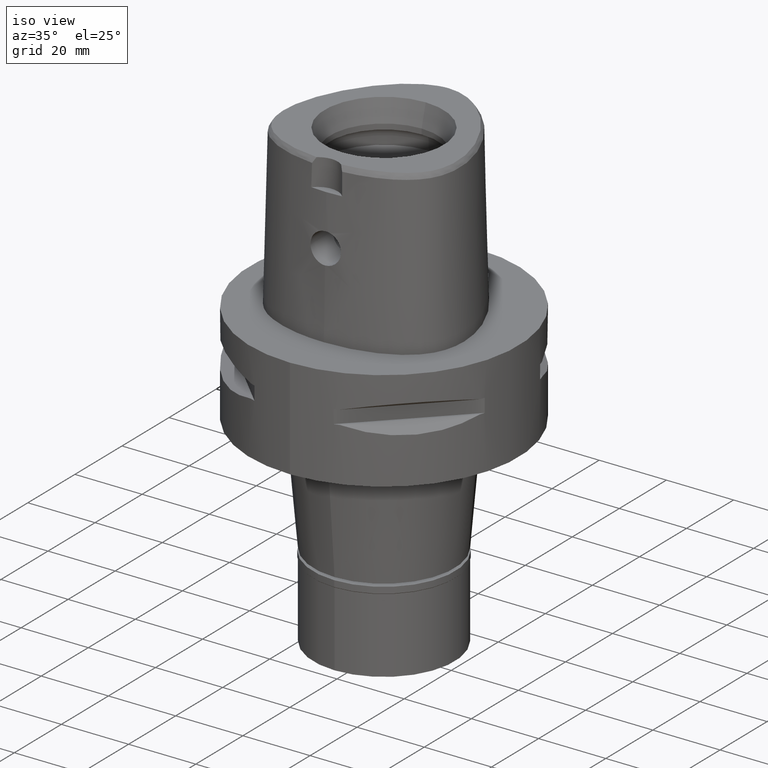
[diagram: clean part render]
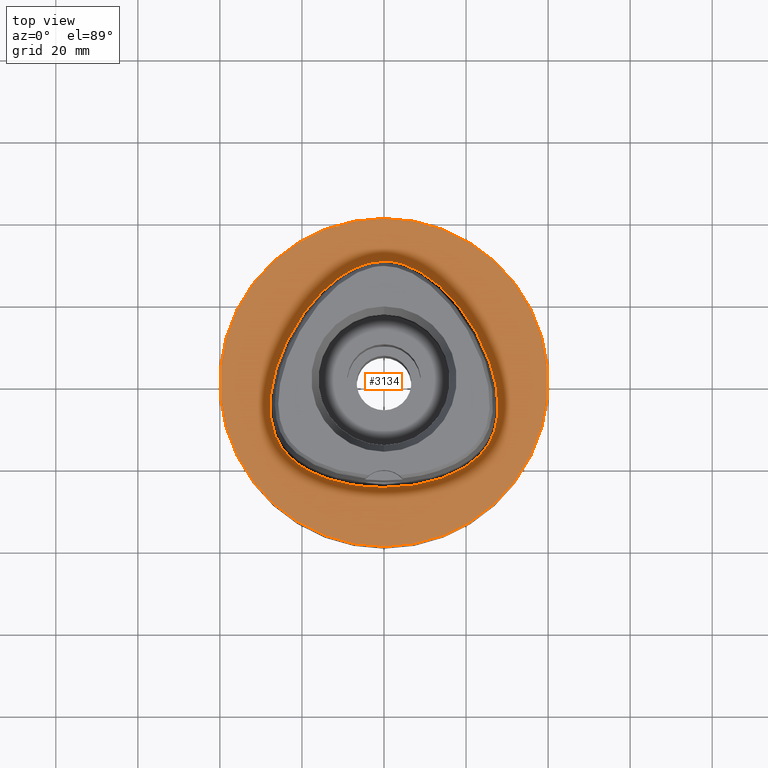
[diagram: tour spotlight — one face highlighted and labeled with its STEP entity id]
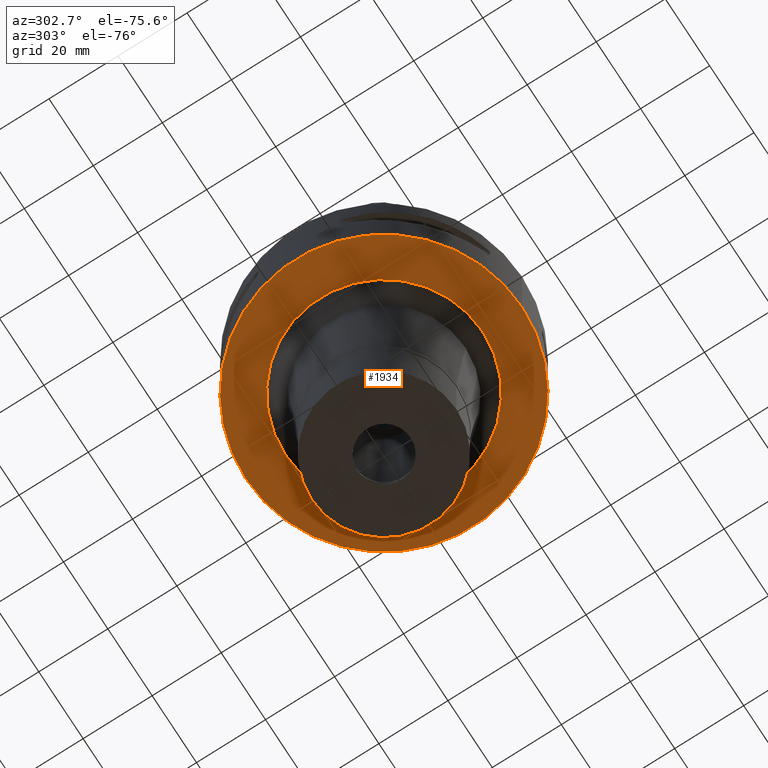
[diagram: tour spotlight — one face highlighted and labeled with its STEP entity id]
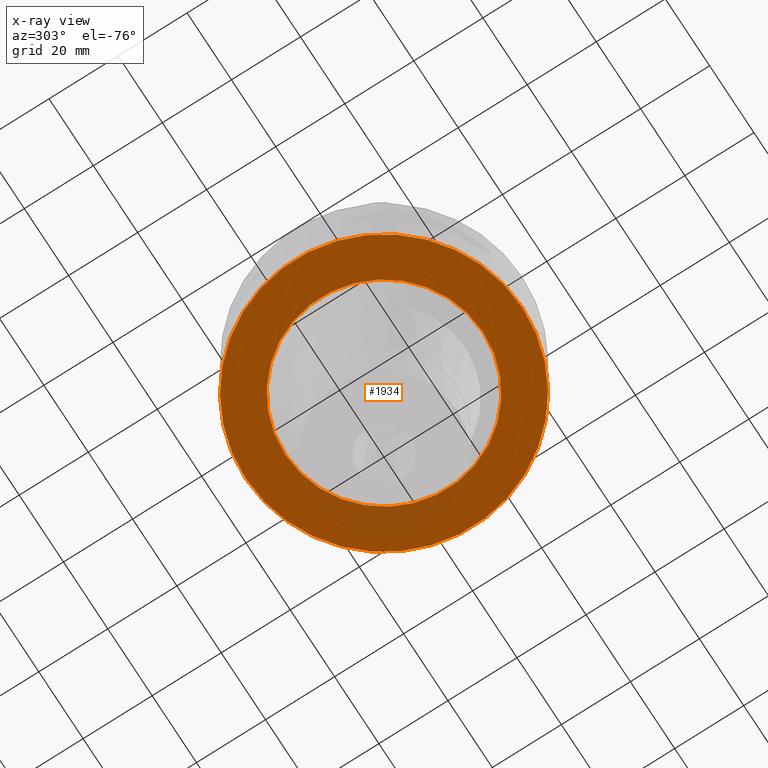
[diagram: x-ray of the same camera — body ghosted, this tour face saturated]
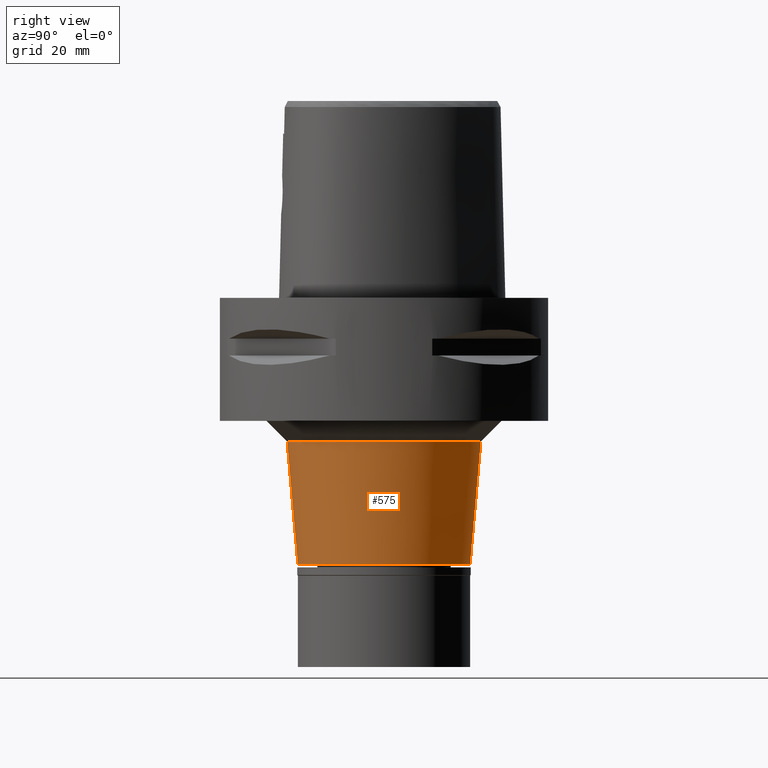
[diagram: tour spotlight — one face highlighted and labeled with its STEP entity id]
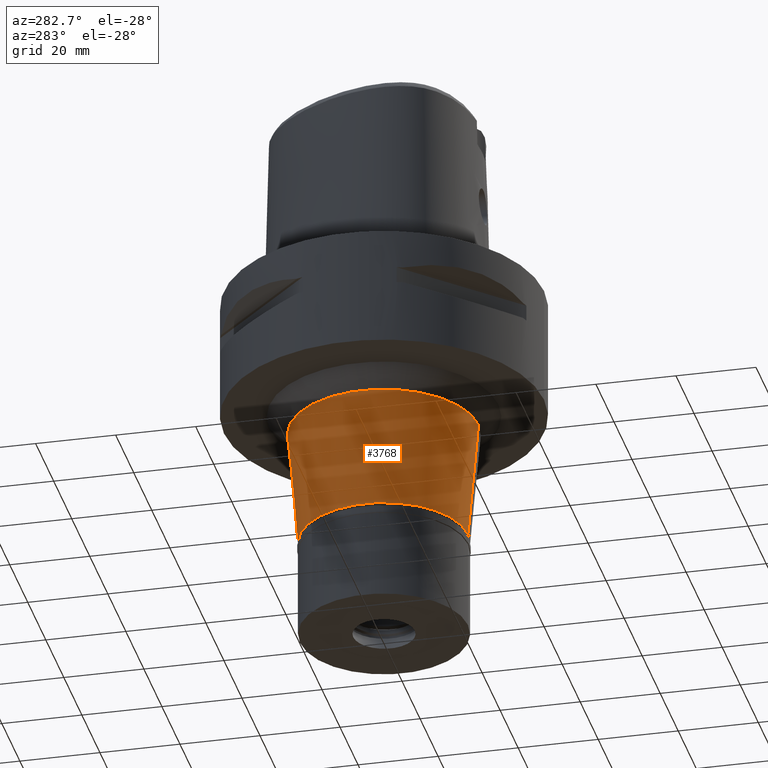
[diagram: tour spotlight — one face highlighted and labeled with its STEP entity id]
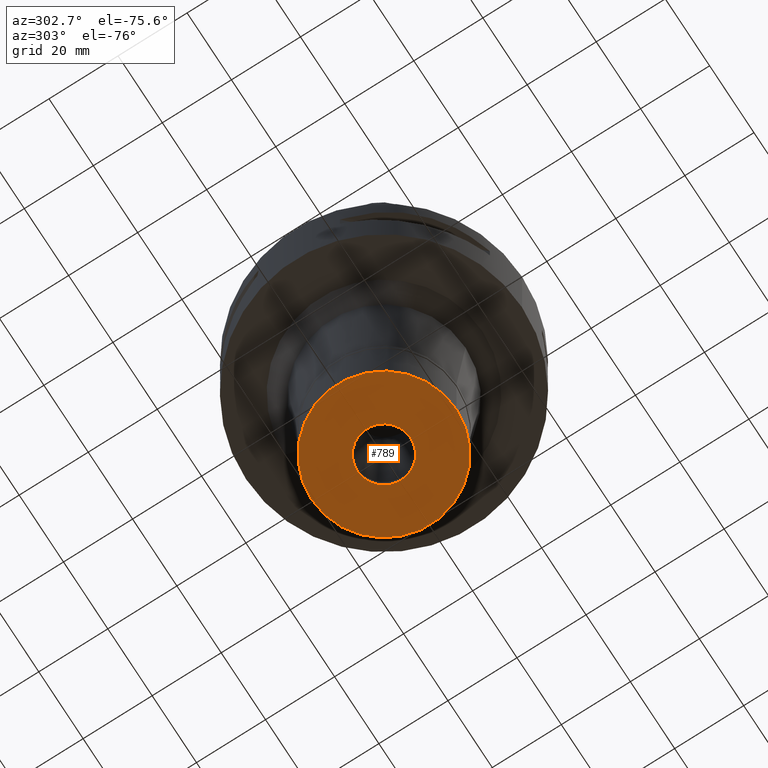
[diagram: tour spotlight — one face highlighted and labeled with its STEP entity id]
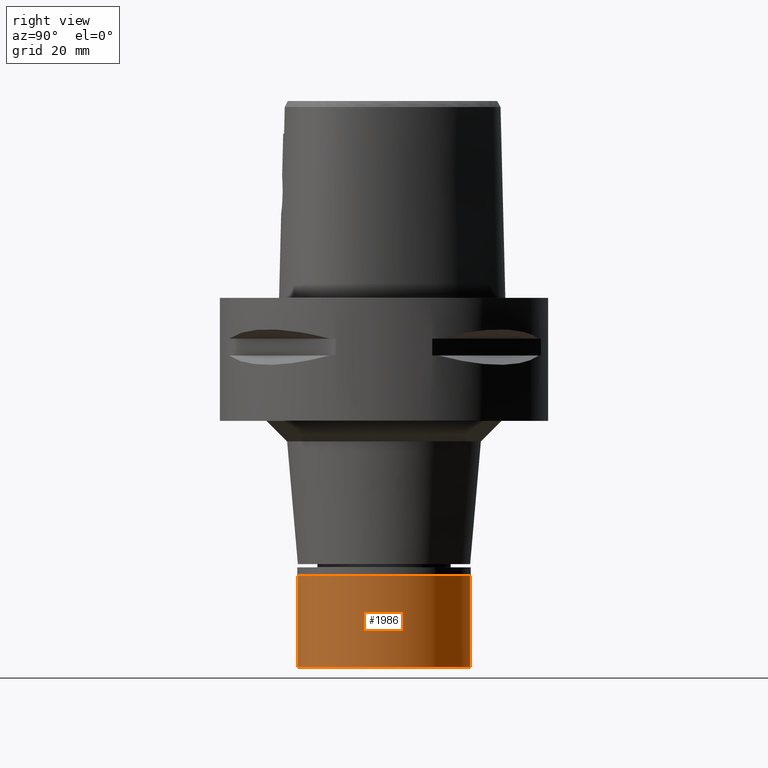
[diagram: tour spotlight — one face highlighted and labeled with its STEP entity id]
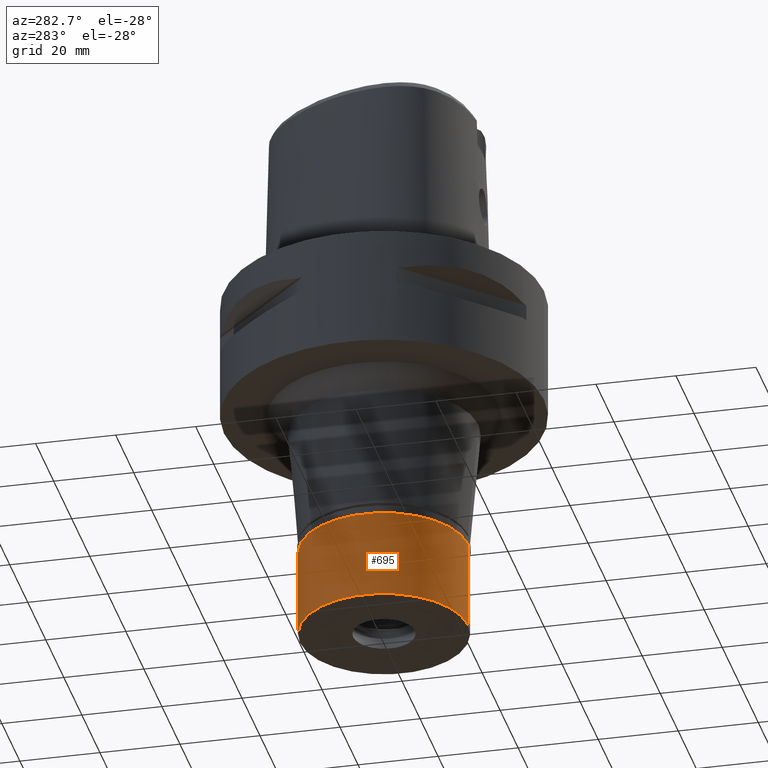
[diagram: tour spotlight — one face highlighted and labeled with its STEP entity id]
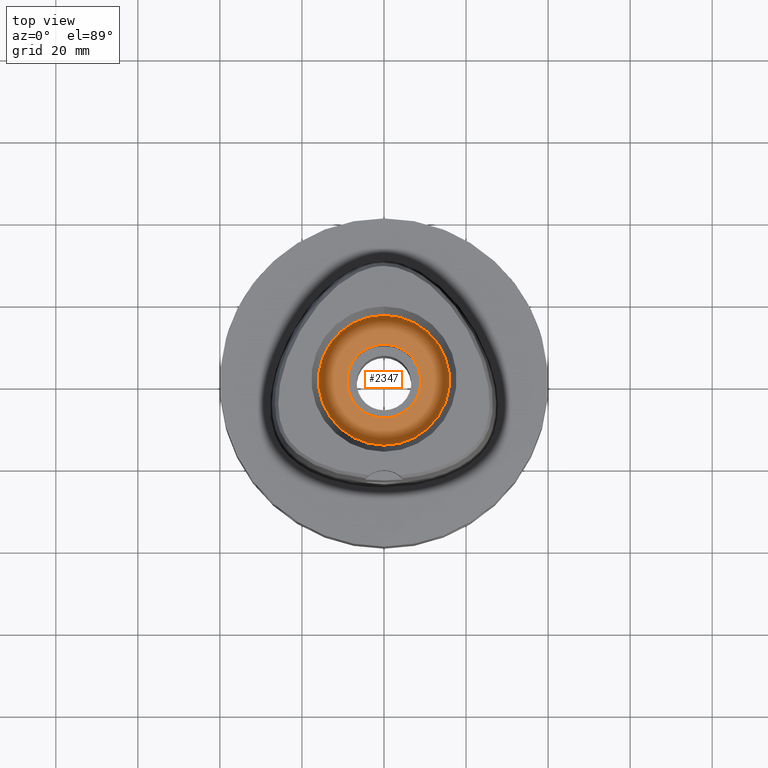
[diagram: tour spotlight — one face highlighted and labeled with its STEP entity id]
A machine part: a face-by-face anatomy tour. The part has 97 B-rep faces; the first image is the clean iso view, then the 8 largest visible faces are spotlighted one at a time (largest first), each with its STEP entity span.

Face 1 — top view, entity #3134. In plain terms, the highlighted planar face has unit normal (0, 0, -1).
Definition (entity closure, byte-faithful):
#14 = CARTESIAN_POINT ( 'NONE',  ( -26.34912733307332644, -13.39455076409285894, 1.705449548944359961E-06 ) ) ;
#89 = CARTESIAN_POINT ( 'NONE',  ( 27.53737508976282911, -1.765625004403643228, 1.164179840311592440E-06 ) ) ;
#183 = ORIENTED_EDGE ( 'NONE', *, *, #2771, .F. ) ;
#204 = DIRECTION ( 'NONE',  ( 0.0000000000000000000, 1.000000000000000000, 0.0000000000000000000 ) ) ;
#330 = CARTESIAN_POINT ( 'NONE',  ( -27.85475985469420479, -5.337968751072506457, 1.705449548944359961E-06 ) ) ;
#382 = CARTESIAN_POINT ( 'NONE',  ( 0.0000000000000000000, 1.224646799146999965E-14, 0.0000000000000000000 ) ) ;
#415 = CARTESIAN_POINT ( 'NONE',  ( 0.0000000000000000000, 1.275163479612000028E-14, 0.0000000000000000000 ) ) ;
#451 = VERTEX_POINT ( 'NONE', #1388 ) ;
#513 = CARTESIAN_POINT ( 'NONE',  ( 9.304563391385238802, 26.79191403758505885, 1.164179840311592440E-06 ) ) ;
#684 = ORIENTED_EDGE ( 'NONE', *, *, #3972, .F. ) ;
#762 = FACE_OUTER_BOUND ( 'NONE', #2837, .T. ) ;
#786 = CARTESIAN_POINT ( 'NONE',  ( -6.691850457964651611, -25.24546870763568407, 1.705449548944359961E-06 ) ) ;
#866 = CARTESIAN_POINT ( 'NONE',  ( 26.34912734549795488, -13.39455076954364543, 1.164179840311592440E-06 ) ) ;
#987 = AXIS2_PLACEMENT_3D ( 'NONE', #415, #4293, #3538 ) ;
#1020 = AXIS2_PLACEMENT_3D ( 'NONE', #2168, #3720, #204 ) ;
#1023 = CARTESIAN_POINT ( 'NONE',  ( 4.148697105489999649E-11, 29.57499999998999840, 1.066184177981999759E-13 ) ) ;
#1052 = EDGE_CURVE ( 'NONE', #1465, #3949, #1107, .T. ) ;
#1073 = CARTESIAN_POINT ( 'NONE',  ( -24.77458490052401885, -16.12173825595970911, 1.705449548944359961E-06 ) ) ;
#1107 = CIRCLE ( 'NONE', #1020, 40.00000000000000000 ) ;
#1119 = B_SPLINE_CURVE_WITH_KNOTS ( 'NONE', 3,
 ( #1951, #2663, #4308, #2362, #2688, #2286, #3044, #4196, #3842, #2741, #4610, #330, #3870, #1160, #14, #4250, #1073, #4226, #1897, #5022, #3450, #3076, #786, #3103, #5077 ),
 .UNSPECIFIED., .F., .F.,
 ( 4, 1, 1, 1, 1, 1, 1, 1, 1, 1, 1, 1, 1, 1, 1, 1, 1, 1, 1, 1, 1, 1, 4 ),
 ( 0.0000000000000000000, 0.04166666666717999679, 0.08333333333381000296, 0.1250000000004000134, 0.1666666666671000052, 0.2500000000002999823, 0.3333333333335999904, 0.4166666666668999985, 0.4583333333335000148, 0.5000000000001000311, 0.5416666666667999674, 0.5833333333333999837, 0.6250000000000000000, 0.6458333333333000637, 0.6666666666667000474, 0.6875000000000000000, 0.7083333333333000637, 0.7499999999999000799, 0.7916666666666000163, 0.8333333333332000326, 0.8749999999998000488, 0.9166666666664999852, 1.000000000000000000 ),
 .UNSPECIFIED. ) ;
#1160 = CARTESIAN_POINT ( 'NONE',  ( -27.10051713254556205, -11.41106444140730325, 1.705449548944359961E-06 ) ) ;
#1243 = CARTESIAN_POINT ( 'NONE',  ( 0.0000000000000000000, -40.00000000000000000, 0.0000000000000000000 ) ) ;
#1288 = CARTESIAN_POINT ( 'NONE',  ( 22.33885463237151114, 12.89734373538379764, 1.164179840311592440E-06 ) ) ;
#1388 = CARTESIAN_POINT ( 'NONE',  ( 4.148697105489999649E-11, 29.57499999998999840, 1.066184177981999759E-13 ) ) ;
#1395 = AXIS2_PLACEMENT_3D ( 'NONE', #382, #4581, #2633 ) ;
#1465 = VERTEX_POINT ( 'NONE', #5086 ) ;
#1509 = ORIENTED_EDGE ( 'NONE', *, *, #1052, .F. ) ;
#1524 = EDGE_LOOP ( 'NONE', ( #4900, #183 ) ) ;
#1567 = CIRCLE ( 'NONE', #987, 40.00000000000000000 ) ;
#1674 = CARTESIAN_POINT ( 'NONE',  ( 26.77222811453097862, 1.900468742518985676, 1.164179840311592440E-06 ) ) ;
#1700 = CARTESIAN_POINT ( 'NONE',  ( 18.55019647686541973, -21.45394528686249558, 1.164179840311592440E-06 ) ) ;
#1897 = CARTESIAN_POINT ( 'NONE',  ( -21.42129056772870044, -19.59889645026296989, 1.705449548944359961E-06 ) ) ;
#1951 = CARTESIAN_POINT ( 'NONE',  ( 4.148697105489999649E-11, 29.57499999998999840, 1.066184177981999759E-13 ) ) ;
#2074 = CARTESIAN_POINT ( 'NONE',  ( 6.262496933472998073, 28.35083005116850785, 1.164179840311592440E-06 ) ) ;
#2168 = CARTESIAN_POINT ( 'NONE',  ( 0.0000000000000000000, 1.275163479612000028E-14, 0.0000000000000000000 ) ) ;
#2286 = CARTESIAN_POINT ( 'NONE',  ( -13.21796077729071506, 24.04386715519049389, 1.705449548944359961E-06 ) ) ;
#2333 = CARTESIAN_POINT ( 'NONE',  ( -1.828049286641999946E-11, -25.57499999999999929, 1.130577113410000092E-13 ) ) ;
#2362 = CARTESIAN_POINT ( 'NONE',  ( -6.262496928210503633, 28.35083003863561046, 1.705449548944359961E-06 ) ) ;
#2422 = CARTESIAN_POINT ( 'NONE',  ( 23.43253026650821980, -17.76420408123775019, 1.164179840311592440E-06 ) ) ;
#2444 = CARTESIAN_POINT ( 'NONE',  ( 27.10051714560889380, -11.41106444512425000, 1.164179840311592440E-06 ) ) ;
#2467 = CARTESIAN_POINT ( 'NONE',  ( 6.691850459824340014, -25.24546872108141571, 1.164179840311592440E-06 ) ) ;
#2633 = DIRECTION ( 'NONE',  ( 0.0000000000000000000, -1.000000000000000000, 0.0000000000000000000 ) ) ;
#2663 = CARTESIAN_POINT ( 'NONE',  ( -1.049694954977379302, 29.57499995736959164, 1.705449548944359961E-06 ) ) ;
#2688 = CARTESIAN_POINT ( 'NONE',  ( -9.304563384306039353, 26.79191402601255945, 1.705449548944359961E-06 ) ) ;
#2741 = CARTESIAN_POINT ( 'NONE',  ( -26.77222810143141984, 1.900468739040622079, 1.705449548944359961E-06 ) ) ;
#2771 = EDGE_CURVE ( 'NONE', #3468, #451, #3079, .T. ) ;
#2792 = CARTESIAN_POINT ( 'NONE',  ( 2.676740183931397787, -25.57499997089952615, 1.164179840311592440E-06 ) ) ;
#2837 = EDGE_LOOP ( 'NONE', ( #1509, #684 ) ) ;
#2847 = CARTESIAN_POINT ( 'NONE',  ( 17.75297948911071089, 19.52218748141137894, 1.164179840311592440E-06 ) ) ;
#2864 = CARTESIAN_POINT ( 'NONE',  ( 15.29776365225407098, -22.96525387908032911, 1.164179840311592440E-06 ) ) ;
#3014 = FACE_BOUND ( 'NONE', #1524, .T. ) ;
#3044 = CARTESIAN_POINT ( 'NONE',  ( -17.75297947861584547, 19.52218747277862221, 1.705449548944359961E-06 ) ) ;
#3048 = EDGE_CURVE ( 'NONE', #451, #3468, #1119, .T. ) ;
#3076 = CARTESIAN_POINT ( 'NONE',  ( -11.74025984361419894, -24.13566402128002508, 1.705449548944359961E-06 ) ) ;
#3079 = B_SPLINE_CURVE_WITH_KNOTS ( 'NONE', 3,
 ( #4737, #2792, #2467, #4365, #2864, #1700, #4390, #2422, #3984, #4437, #866, #2444, #4007, #3608, #89, #1674, #3228, #1288, #2847, #4411, #513, #2074, #3636, #3250, #1023 ),
 .UNSPECIFIED., .F., .F.,
 ( 4, 1, 1, 1, 1, 1, 1, 1, 1, 1, 1, 1, 1, 1, 1, 1, 1, 1, 1, 1, 1, 1, 4 ),
 ( 0.0000000000000000000, 0.08333333333347001104, 0.1250000000001000033, 0.1666666666668000230, 0.2083333333334000115, 0.2500000000000000000, 0.2916666666666999919, 0.3125000000000000000, 0.3333333333333000081, 0.3541666666666999919, 0.3750000000000000000, 0.4166666666666000163, 0.4583333333332000326, 0.4999999999998999689, 0.5416666666666000163, 0.5833333333331000015, 0.6666666666664999852, 0.7499999999997000177, 0.8333333333329999704, 0.8749999999995999866, 0.9166666666663000340, 0.9583333333329000503, 1.000000000000000000 ),
 .UNSPECIFIED. ) ;
#3103 = CARTESIAN_POINT ( 'NONE',  ( -2.676740183208207391, -25.57499995736643683, 1.705449548944359961E-06 ) ) ;
#3134 = ADVANCED_FACE ( 'NONE', ( #762, #3014 ), #3900, .F. ) ;
#3228 = CARTESIAN_POINT ( 'NONE',  ( 25.20914247281115195, 6.827421864003696328, 1.164179840311592440E-06 ) ) ;
#3250 = CARTESIAN_POINT ( 'NONE',  ( 1.049694955994413759, 29.57499997089207611, 1.164179840311592440E-06 ) ) ;
#3450 = CARTESIAN_POINT ( 'NONE',  ( -15.29776364732825300, -22.96525386644672651, 1.705449548944359961E-06 ) ) ;
#3468 = VERTEX_POINT ( 'NONE', #2333 ) ;
#3538 = DIRECTION ( 'NONE',  ( 0.0000000000000000000, -1.000000000000000000, 0.0000000000000000000 ) ) ;
#3608 = CARTESIAN_POINT ( 'NONE',  ( 27.85475986826232031, -5.337968750731448608, 1.164179840311592440E-06 ) ) ;
#3636 = CARTESIAN_POINT ( 'NONE',  ( 3.149084868224741207, 29.34015622139539659, 1.164179840311592440E-06 ) ) ;
#3720 = DIRECTION ( 'NONE',  ( 0.0000000000000000000, 0.0000000000000000000, -1.000000000000000000 ) ) ;
#3842 = CARTESIAN_POINT ( 'NONE',  ( -25.20914246024667094, 6.827421858890985185, 1.705449548944359961E-06 ) ) ;
#3870 = CARTESIAN_POINT ( 'NONE',  ( -27.68378749593933463, -8.751933588368849826, 1.705449548944359961E-06 ) ) ;
#3900 = PLANE ( 'NONE',  #1395 ) ;
#3949 = VERTEX_POINT ( 'NONE', #1243 ) ;
#3972 = EDGE_CURVE ( 'NONE', #3949, #1465, #1567, .T. ) ;
#3984 = CARTESIAN_POINT ( 'NONE',  ( 24.77458491144825459, -16.12173826397321719, 1.164179840311592440E-06 ) ) ;
#4007 = CARTESIAN_POINT ( 'NONE',  ( 27.68378750942461153, -8.751933590077198843, 1.164179840311592440E-06 ) ) ;
#4196 = CARTESIAN_POINT ( 'NONE',  ( -22.33885462060319682, 12.89734372859490641, 1.705449548944359961E-06 ) ) ;
#4226 = CARTESIAN_POINT ( 'NONE',  ( -23.43253025675323542, -17.76420407177270633, 1.705449548944359961E-06 ) ) ;
#4250 = CARTESIAN_POINT ( 'NONE',  ( -25.63812386159936096, -14.80217771302135965, 1.705449548944359961E-06 ) ) ;
#4293 = DIRECTION ( 'NONE',  ( 0.0000000000000000000, 0.0000000000000000000, -1.000000000000000000 ) ) ;
#4308 = CARTESIAN_POINT ( 'NONE',  ( -3.149084865302233638, 29.34015620808482083, 1.705449548944359961E-06 ) ) ;
#4365 = CARTESIAN_POINT ( 'NONE',  ( 11.74025984714903181, -24.13566403436354335, 1.164179840311592440E-06 ) ) ;
#4390 = CARTESIAN_POINT ( 'NONE',  ( 21.42129057595384012, -19.59889646108890560, 1.164179840311592440E-06 ) ) ;
#4411 = CARTESIAN_POINT ( 'NONE',  ( 13.21796078622399584, 24.04386716544539837, 1.164179840311592440E-06 ) ) ;
#4437 = CARTESIAN_POINT ( 'NONE',  ( 25.63812387334327170, -14.80217771979573627, 1.164179840311592440E-06 ) ) ;
#4581 = DIRECTION ( 'NONE',  ( 0.0000000000000000000, 0.0000000000000000000, -1.000000000000000000 ) ) ;
#4610 = CARTESIAN_POINT ( 'NONE',  ( -27.53737507635801762, -1.765625006451404744, 1.705449548944359961E-06 ) ) ;
#4737 = CARTESIAN_POINT ( 'NONE',  ( -1.828049286641999946E-11, -25.57499999999999929, 1.130577113410000092E-13 ) ) ;
#4900 = ORIENTED_EDGE ( 'NONE', *, *, #3048, .F. ) ;
#5022 = CARTESIAN_POINT ( 'NONE',  ( -18.55019647038082908, -21.45394527494096693, 1.705449548944359961E-06 ) ) ;
#5077 = CARTESIAN_POINT ( 'NONE',  ( -1.828049286641999946E-11, -25.57499999999999929, 1.130577113410000092E-13 ) ) ;
#5086 = CARTESIAN_POINT ( 'NONE',  ( 0.0000000000000000000, 40.00000000000000000, 0.0000000000000000000 ) ) ;

Face 2 — auxiliary view, entity #1934. An x-ray twin of the same camera follows (body ghosted, this face saturated) — the face is partly hidden behind the body. In plain terms, the highlighted planar face has unit normal (0, 0, -1).
Definition (entity closure, byte-faithful):
#102 = AXIS2_PLACEMENT_3D ( 'NONE', #4310, #3504, #4282 ) ;
#273 = AXIS2_PLACEMENT_3D ( 'NONE', #2447, #4441, #489 ) ;
#277 = DIRECTION ( 'NONE',  ( 0.0000000000000000000, -1.000000000000000000, 0.0000000000000000000 ) ) ;
#333 = DIRECTION ( 'NONE',  ( 0.0000000000000000000, 0.0000000000000000000, 1.000000000000000000 ) ) ;
#363 = CIRCLE ( 'NONE', #2567, 40.00000000000000000 ) ;
#395 = EDGE_CURVE ( 'NONE', #1029, #2221, #524, .T. ) ;
#465 = VERTEX_POINT ( 'NONE', #1439 ) ;
#489 = DIRECTION ( 'NONE',  ( 0.0000000000000000000, 1.000000000000000000, 0.0000000000000000000 ) ) ;
#524 = CIRCLE ( 'NONE', #273, 28.61591103943000292 ) ;
#555 = CARTESIAN_POINT ( 'NONE',  ( 0.0000000000000000000, 1.275163479612000028E-14, -30.00000000000000000 ) ) ;
#613 = CARTESIAN_POINT ( 'NONE',  ( 0.0000000000000000000, 40.00000000000000000, -30.00000000000000000 ) ) ;
#629 = DIRECTION ( 'NONE',  ( 0.0000000000000000000, 0.0000000000000000000, 1.000000000000000000 ) ) ;
#661 = CARTESIAN_POINT ( 'NONE',  ( 0.0000000000000000000, 1.275163479612000028E-14, -30.00000000000000000 ) ) ;
#736 = FACE_BOUND ( 'NONE', #745, .T. ) ;
#745 = EDGE_LOOP ( 'NONE', ( #4161, #3372 ) ) ;
#1029 = VERTEX_POINT ( 'NONE', #1758 ) ;
#1041 = DIRECTION ( 'NONE',  ( 0.0000000000000000000, 1.000000000000000000, 0.0000000000000000000 ) ) ;
#1179 = DIRECTION ( 'NONE',  ( 0.0000000000000000000, 0.0000000000000000000, -1.000000000000000000 ) ) ;
#1235 = AXIS2_PLACEMENT_3D ( 'NONE', #2682, #1179, #2733 ) ;
#1355 = ORIENTED_EDGE ( 'NONE', *, *, #1770, .F. ) ;
#1439 = CARTESIAN_POINT ( 'NONE',  ( 0.0000000000000000000, -40.00000000000000000, -30.00000000000000000 ) ) ;
#1532 = EDGE_LOOP ( 'NONE', ( #4908, #1355 ) ) ;
#1758 = CARTESIAN_POINT ( 'NONE',  ( 0.0000000000000000000, 28.61591103943000292, -30.00000000000000000 ) ) ;
#1770 = EDGE_CURVE ( 'NONE', #465, #4216, #363, .T. ) ;
#1934 = ADVANCED_FACE ( 'NONE', ( #4361, #736 ), #3902, .T. ) ;
#2221 = VERTEX_POINT ( 'NONE', #5011 ) ;
#2382 = AXIS2_PLACEMENT_3D ( 'NONE', #555, #629, #1041 ) ;
#2447 = CARTESIAN_POINT ( 'NONE',  ( 0.0000000000000000000, 0.0000000000000000000, -30.00000000000000000 ) ) ;
#2540 = CIRCLE ( 'NONE', #1235, 28.61591103943000292 ) ;
#2567 = AXIS2_PLACEMENT_3D ( 'NONE', #661, #333, #277 ) ;
#2641 = EDGE_CURVE ( 'NONE', #4216, #465, #3192, .T. ) ;
#2682 = CARTESIAN_POINT ( 'NONE',  ( 0.0000000000000000000, 0.0000000000000000000, -30.00000000000000000 ) ) ;
#2733 = DIRECTION ( 'NONE',  ( 0.0000000000000000000, -1.000000000000000000, 0.0000000000000000000 ) ) ;
#3192 = CIRCLE ( 'NONE', #2382, 40.00000000000000000 ) ;
#3299 = EDGE_CURVE ( 'NONE', #2221, #1029, #2540, .T. ) ;
#3372 = ORIENTED_EDGE ( 'NONE', *, *, #3299, .F. ) ;
#3504 = DIRECTION ( 'NONE',  ( 0.0000000000000000000, 0.0000000000000000000, -1.000000000000000000 ) ) ;
#3902 = PLANE ( 'NONE',  #102 ) ;
#4161 = ORIENTED_EDGE ( 'NONE', *, *, #395, .F. ) ;
#4216 = VERTEX_POINT ( 'NONE', #613 ) ;
#4282 = DIRECTION ( 'NONE',  ( 0.0000000000000000000, -1.000000000000000000, 0.0000000000000000000 ) ) ;
#4310 = CARTESIAN_POINT ( 'NONE',  ( 0.0000000000000000000, 0.0000000000000000000, -30.00000000000000000 ) ) ;
#4361 = FACE_OUTER_BOUND ( 'NONE', #1532, .T. ) ;
#4441 = DIRECTION ( 'NONE',  ( 0.0000000000000000000, 0.0000000000000000000, -1.000000000000000000 ) ) ;
#4908 = ORIENTED_EDGE ( 'NONE', *, *, #2641, .F. ) ;
#5011 = CARTESIAN_POINT ( 'NONE',  ( 0.0000000000000000000, -28.61591103943000292, -30.00000000000000000 ) ) ;

Face 3 — right view, entity #575. In plain terms, the highlighted conical surface has half-angle 5 deg.
Definition (entity closure, byte-faithful):
#71 = DIRECTION ( 'NONE',  ( 0.0000000000000000000, 0.0000000000000000000, 1.000000000000000000 ) ) ;
#75 = AXIS2_PLACEMENT_3D ( 'NONE', #560, #71, #4076 ) ;
#435 = CARTESIAN_POINT ( 'NONE',  ( 0.0000000000000000000, 21.00000000000000000, -64.90000000000000568 ) ) ;
#560 = CARTESIAN_POINT ( 'NONE',  ( 0.0000000000000000000, 0.0000000000000000000, -64.90000000000000568 ) ) ;
#575 = ADVANCED_FACE ( 'NONE', ( #3823 ), #3155, .T. ) ;
#626 = VERTEX_POINT ( 'NONE', #435 ) ;
#733 = DIRECTION ( 'NONE',  ( 0.0000000000000000000, 0.0000000000000000000, 1.000000000000000000 ) ) ;
#843 = VECTOR ( 'NONE', #1871, 1000.000000000000000 ) ;
#1077 = LINE ( 'NONE', #4200, #843 ) ;
#1134 = CARTESIAN_POINT ( 'NONE',  ( 0.0000000000000000000, 0.0000000000000000000, -35.00000000000000000 ) ) ;
#1238 = EDGE_CURVE ( 'NONE', #3264, #626, #4566, .T. ) ;
#1556 = CARTESIAN_POINT ( 'NONE',  ( 0.0000000000000000000, 23.61591103942999936, -35.00000000000000000 ) ) ;
#1765 = VERTEX_POINT ( 'NONE', #2288 ) ;
#1862 = EDGE_CURVE ( 'NONE', #1765, #1885, #1077, .T. ) ;
#1871 = DIRECTION ( 'NONE',  ( 0.0000000000000000000, 0.08715574274775321484, -0.9961946980917372185 ) ) ;
#1885 = VERTEX_POINT ( 'NONE', #3426 ) ;
#2288 = CARTESIAN_POINT ( 'NONE',  ( 0.0000000000000000000, -23.61591103942999936, -35.00000000000000000 ) ) ;
#2304 = ORIENTED_EDGE ( 'NONE', *, *, #3055, .F. ) ;
#2316 = DIRECTION ( 'NONE',  ( 0.0000000000000000000, -1.000000000000000000, 0.0000000000000000000 ) ) ;
#2355 = EDGE_LOOP ( 'NONE', ( #2304, #2551, #3973, #3013 ) ) ;
#2551 = ORIENTED_EDGE ( 'NONE', *, *, #1862, .T. ) ;
#2639 = DIRECTION ( 'NONE',  ( 0.0000000000000000000, 0.0000000000000000000, 1.000000000000000000 ) ) ;
#2721 = CARTESIAN_POINT ( 'NONE',  ( 0.0000000000000000000, 0.0000000000000000000, -49.95000000000000284 ) ) ;
#2901 = AXIS2_PLACEMENT_3D ( 'NONE', #2721, #2639, #4668 ) ;
#3013 = ORIENTED_EDGE ( 'NONE', *, *, #1238, .F. ) ;
#3055 = EDGE_CURVE ( 'NONE', #1765, #3264, #4171, .T. ) ;
#3155 = CONICAL_SURFACE ( 'NONE', #2901, 22.30795551971000279, 0.08726646259969973729 ) ;
#3264 = VERTEX_POINT ( 'NONE', #1556 ) ;
#3426 = CARTESIAN_POINT ( 'NONE',  ( 0.0000000000000000000, -21.00000000000000000, -64.90000000000000568 ) ) ;
#3823 = FACE_OUTER_BOUND ( 'NONE', #2355, .T. ) ;
#3932 = EDGE_CURVE ( 'NONE', #1885, #626, #4915, .T. ) ;
#3973 = ORIENTED_EDGE ( 'NONE', *, *, #3932, .T. ) ;
#4076 = DIRECTION ( 'NONE',  ( 0.0000000000000000000, -1.000000000000000000, 0.0000000000000000000 ) ) ;
#4171 = CIRCLE ( 'NONE', #4588, 23.61591103941999847 ) ;
#4178 = DIRECTION ( 'NONE',  ( 0.0000000000000000000, -0.08715574274775321484, -0.9961946980917372185 ) ) ;
#4200 = CARTESIAN_POINT ( 'NONE',  ( 0.0000000000000000000, -23.61591103942999936, -35.00000000000000000 ) ) ;
#4448 = VECTOR ( 'NONE', #4178, 1000.000000000000000 ) ;
#4566 = LINE ( 'NONE', #4949, #4448 ) ;
#4588 = AXIS2_PLACEMENT_3D ( 'NONE', #1134, #733, #2316 ) ;
#4668 = DIRECTION ( 'NONE',  ( 0.0000000000000000000, 1.000000000000000000, 0.0000000000000000000 ) ) ;
#4915 = CIRCLE ( 'NONE', #75, 21.00000000000000000 ) ;
#4949 = CARTESIAN_POINT ( 'NONE',  ( 0.0000000000000000000, 23.61591103942999936, -35.00000000000000000 ) ) ;

Face 4 — auxiliary view, entity #3768. In plain terms, the highlighted conical surface has half-angle 5 deg.
Definition (entity closure, byte-faithful):
#435 = CARTESIAN_POINT ( 'NONE',  ( 0.0000000000000000000, 21.00000000000000000, -64.90000000000000568 ) ) ;
#570 = FACE_OUTER_BOUND ( 'NONE', #3808, .T. ) ;
#593 = DIRECTION ( 'NONE',  ( 0.0000000000000000000, 0.0000000000000000000, -1.000000000000000000 ) ) ;
#626 = VERTEX_POINT ( 'NONE', #435 ) ;
#843 = VECTOR ( 'NONE', #1871, 1000.000000000000000 ) ;
#1048 = EDGE_CURVE ( 'NONE', #1765, #3264, #3230, .T. ) ;
#1077 = LINE ( 'NONE', #4200, #843 ) ;
#1238 = EDGE_CURVE ( 'NONE', #3264, #626, #4566, .T. ) ;
#1397 = DIRECTION ( 'NONE',  ( 0.0000000000000000000, 0.0000000000000000000, 1.000000000000000000 ) ) ;
#1556 = CARTESIAN_POINT ( 'NONE',  ( 0.0000000000000000000, 23.61591103942999936, -35.00000000000000000 ) ) ;
#1765 = VERTEX_POINT ( 'NONE', #2288 ) ;
#1806 = DIRECTION ( 'NONE',  ( 0.0000000000000000000, -1.000000000000000000, 0.0000000000000000000 ) ) ;
#1862 = EDGE_CURVE ( 'NONE', #1765, #1885, #1077, .T. ) ;
#1871 = DIRECTION ( 'NONE',  ( 0.0000000000000000000, 0.08715574274775321484, -0.9961946980917372185 ) ) ;
#1875 = ORIENTED_EDGE ( 'NONE', *, *, #2406, .T. ) ;
#1879 = CIRCLE ( 'NONE', #4013, 21.00000000000000000 ) ;
#1885 = VERTEX_POINT ( 'NONE', #3426 ) ;
#2072 = ORIENTED_EDGE ( 'NONE', *, *, #1048, .T. ) ;
#2288 = CARTESIAN_POINT ( 'NONE',  ( 0.0000000000000000000, -23.61591103942999936, -35.00000000000000000 ) ) ;
#2406 = EDGE_CURVE ( 'NONE', #626, #1885, #1879, .T. ) ;
#2532 = DIRECTION ( 'NONE',  ( 0.0000000000000000000, 1.000000000000000000, 0.0000000000000000000 ) ) ;
#2573 = DIRECTION ( 'NONE',  ( 0.0000000000000000000, 1.000000000000000000, 0.0000000000000000000 ) ) ;
#2964 = DIRECTION ( 'NONE',  ( 0.0000000000000000000, 0.0000000000000000000, 1.000000000000000000 ) ) ;
#3230 = CIRCLE ( 'NONE', #3383, 23.61591103942999936 ) ;
#3264 = VERTEX_POINT ( 'NONE', #1556 ) ;
#3272 = CONICAL_SURFACE ( 'NONE', #3941, 22.30795551971000279, 0.08726646259969973729 ) ;
#3357 = CARTESIAN_POINT ( 'NONE',  ( 0.0000000000000000000, 0.0000000000000000000, -49.95000000000000284 ) ) ;
#3383 = AXIS2_PLACEMENT_3D ( 'NONE', #3384, #593, #1806 ) ;
#3384 = CARTESIAN_POINT ( 'NONE',  ( 0.0000000000000000000, 0.0000000000000000000, -35.00000000000000000 ) ) ;
#3426 = CARTESIAN_POINT ( 'NONE',  ( 0.0000000000000000000, -21.00000000000000000, -64.90000000000000568 ) ) ;
#3528 = ORIENTED_EDGE ( 'NONE', *, *, #1238, .T. ) ;
#3768 = ADVANCED_FACE ( 'NONE', ( #570 ), #3272, .T. ) ;
#3808 = EDGE_LOOP ( 'NONE', ( #1875, #5051, #2072, #3528 ) ) ;
#3941 = AXIS2_PLACEMENT_3D ( 'NONE', #3357, #1397, #2573 ) ;
#4013 = AXIS2_PLACEMENT_3D ( 'NONE', #4093, #2964, #2532 ) ;
#4093 = CARTESIAN_POINT ( 'NONE',  ( 0.0000000000000000000, 0.0000000000000000000, -64.90000000000000568 ) ) ;
#4178 = DIRECTION ( 'NONE',  ( 0.0000000000000000000, -0.08715574274775321484, -0.9961946980917372185 ) ) ;
#4200 = CARTESIAN_POINT ( 'NONE',  ( 0.0000000000000000000, -23.61591103942999936, -35.00000000000000000 ) ) ;
#4448 = VECTOR ( 'NONE', #4178, 1000.000000000000000 ) ;
#4566 = LINE ( 'NONE', #4949, #4448 ) ;
#4949 = CARTESIAN_POINT ( 'NONE',  ( 0.0000000000000000000, 23.61591103942999936, -35.00000000000000000 ) ) ;
#5051 = ORIENTED_EDGE ( 'NONE', *, *, #1862, .F. ) ;

Face 5 — auxiliary view, entity #789. In plain terms, the highlighted planar face has unit normal (0, 0, -1).
Definition (entity closure, byte-faithful):
#164 = EDGE_CURVE ( 'NONE', #2937, #4060, #2336, .T. ) ;
#186 = ORIENTED_EDGE ( 'NONE', *, *, #4120, .F. ) ;
#319 = DIRECTION ( 'NONE',  ( 0.0000000000000000000, -1.000000000000000000, 0.0000000000000000000 ) ) ;
#439 = PLANE ( 'NONE',  #4462 ) ;
#462 = CARTESIAN_POINT ( 'NONE',  ( 0.0000000000000000000, 7.700000000000000178, -24.29999999999999716 ) ) ;
#577 = VERTEX_POINT ( 'NONE', #3908 ) ;
#635 = DIRECTION ( 'NONE',  ( 0.0000000000000000000, 0.0000000000000000000, 1.000000000000000000 ) ) ;
#789 = ADVANCED_FACE ( 'NONE', ( #2400, #896 ), #439, .T. ) ;
#896 = FACE_BOUND ( 'NONE', #4396, .T. ) ;
#1067 = CIRCLE ( 'NONE', #4016, 21.00000000000000000 ) ;
#1366 = DIRECTION ( 'NONE',  ( 0.0000000000000000000, 1.000000000000000000, 0.0000000000000000000 ) ) ;
#1513 = AXIS2_PLACEMENT_3D ( 'NONE', #4601, #4984, #319 ) ;
#1562 = DIRECTION ( 'NONE',  ( 0.0000000000000000000, -1.000000000000000000, 0.0000000000000000000 ) ) ;
#1635 = EDGE_LOOP ( 'NONE', ( #186, #2662 ) ) ;
#1653 = DIRECTION ( 'NONE',  ( 0.0000000000000000000, 0.0000000000000000000, -1.000000000000000000 ) ) ;
#1813 = ORIENTED_EDGE ( 'NONE', *, *, #164, .F. ) ;
#1977 = CIRCLE ( 'NONE', #4509, 21.00000000000000000 ) ;
#2133 = VERTEX_POINT ( 'NONE', #4264 ) ;
#2138 = EDGE_CURVE ( 'NONE', #4060, #2937, #3149, .T. ) ;
#2336 = CIRCLE ( 'NONE', #1513, 7.700000000000000178 ) ;
#2354 = DIRECTION ( 'NONE',  ( 0.0000000000000000000, 0.0000000000000000000, -1.000000000000000000 ) ) ;
#2400 = FACE_OUTER_BOUND ( 'NONE', #1635, .T. ) ;
#2562 = CARTESIAN_POINT ( 'NONE',  ( 0.0000000000000000000, -7.700000000000000178, -24.29999999999999716 ) ) ;
#2662 = ORIENTED_EDGE ( 'NONE', *, *, #3120, .F. ) ;
#2798 = DIRECTION ( 'NONE',  ( 0.0000000000000000000, -1.000000000000000000, 0.0000000000000000000 ) ) ;
#2828 = CARTESIAN_POINT ( 'NONE',  ( 0.0000000000000000000, 0.0000000000000000000, -24.29999999999999716 ) ) ;
#2937 = VERTEX_POINT ( 'NONE', #2562 ) ;
#3059 = AXIS2_PLACEMENT_3D ( 'NONE', #4185, #2354, #3831 ) ;
#3120 = EDGE_CURVE ( 'NONE', #2133, #577, #1067, .T. ) ;
#3130 = DIRECTION ( 'NONE',  ( 0.0000000000000000000, 0.0000000000000000000, 1.000000000000000000 ) ) ;
#3149 = CIRCLE ( 'NONE', #3059, 7.700000000000000178 ) ;
#3695 = ORIENTED_EDGE ( 'NONE', *, *, #2138, .F. ) ;
#3820 = CARTESIAN_POINT ( 'NONE',  ( 0.0000000000000000000, 0.0000000000000000000, -24.29999999999999716 ) ) ;
#3831 = DIRECTION ( 'NONE',  ( 0.0000000000000000000, 1.000000000000000000, 0.0000000000000000000 ) ) ;
#3908 = CARTESIAN_POINT ( 'NONE',  ( 0.0000000000000000000, 21.00000000000000000, -24.29999999999999716 ) ) ;
#4016 = AXIS2_PLACEMENT_3D ( 'NONE', #4278, #3130, #1562 ) ;
#4060 = VERTEX_POINT ( 'NONE', #462 ) ;
#4120 = EDGE_CURVE ( 'NONE', #577, #2133, #1977, .T. ) ;
#4185 = CARTESIAN_POINT ( 'NONE',  ( 0.0000000000000000000, 0.0000000000000000000, -24.29999999999999716 ) ) ;
#4264 = CARTESIAN_POINT ( 'NONE',  ( 0.0000000000000000000, -21.00000000000000000, -24.29999999999999716 ) ) ;
#4278 = CARTESIAN_POINT ( 'NONE',  ( 0.0000000000000000000, 0.0000000000000000000, -24.29999999999999716 ) ) ;
#4396 = EDGE_LOOP ( 'NONE', ( #3695, #1813 ) ) ;
#4462 = AXIS2_PLACEMENT_3D ( 'NONE', #2828, #1653, #2798 ) ;
#4509 = AXIS2_PLACEMENT_3D ( 'NONE', #3820, #635, #1366 ) ;
#4601 = CARTESIAN_POINT ( 'NONE',  ( 0.0000000000000000000, 0.0000000000000000000, -24.29999999999999716 ) ) ;
#4984 = DIRECTION ( 'NONE',  ( 0.0000000000000000000, 0.0000000000000000000, -1.000000000000000000 ) ) ;

Face 6 — right view, entity #1986. In plain terms, the highlighted cylindrical surface (partial cylindrical patch) has radius 21 mm, axis along (0, 0, -1).
Definition (entity closure, byte-faithful):
#354 = ORIENTED_EDGE ( 'NONE', *, *, #4862, .F. ) ;
#360 = DIRECTION ( 'NONE',  ( 0.0000000000000000000, -1.000000000000000000, 0.0000000000000000000 ) ) ;
#384 = CYLINDRICAL_SURFACE ( 'NONE', #3222, 21.00000000000000000 ) ;
#577 = VERTEX_POINT ( 'NONE', #3908 ) ;
#826 = VECTOR ( 'NONE', #4958, 1000.000000000000000 ) ;
#851 = CARTESIAN_POINT ( 'NONE',  ( 0.0000000000000000000, -21.00000000000000000, -2.000000000000000000 ) ) ;
#1067 = CIRCLE ( 'NONE', #4016, 21.00000000000000000 ) ;
#1190 = CARTESIAN_POINT ( 'NONE',  ( 0.0000000000000000000, 0.0000000000000000000, 0.0000000000000000000 ) ) ;
#1210 = FACE_OUTER_BOUND ( 'NONE', #3099, .T. ) ;
#1222 = VERTEX_POINT ( 'NONE', #1904 ) ;
#1282 = VERTEX_POINT ( 'NONE', #1415 ) ;
#1415 = CARTESIAN_POINT ( 'NONE',  ( 0.0000000000000000000, 21.00000000000000000, -2.000000000000000000 ) ) ;
#1562 = DIRECTION ( 'NONE',  ( 0.0000000000000000000, -1.000000000000000000, 0.0000000000000000000 ) ) ;
#1584 = ORIENTED_EDGE ( 'NONE', *, *, #3836, .T. ) ;
#1807 = DIRECTION ( 'NONE',  ( 0.0000000000000000000, 1.000000000000000000, 0.0000000000000000000 ) ) ;
#1904 = CARTESIAN_POINT ( 'NONE',  ( 0.0000000000000000000, -21.00000000000000000, -2.000000000000000000 ) ) ;
#1986 = ADVANCED_FACE ( 'NONE', ( #1210 ), #384, .T. ) ;
#2133 = VERTEX_POINT ( 'NONE', #4264 ) ;
#2790 = VECTOR ( 'NONE', #2802, 1000.000000000000000 ) ;
#2802 = DIRECTION ( 'NONE',  ( 0.0000000000000000000, 0.0000000000000000000, -1.000000000000000000 ) ) ;
#2907 = CARTESIAN_POINT ( 'NONE',  ( 0.0000000000000000000, 0.0000000000000000000, -2.000000000000000000 ) ) ;
#3099 = EDGE_LOOP ( 'NONE', ( #1584, #3199, #3810, #354 ) ) ;
#3120 = EDGE_CURVE ( 'NONE', #2133, #577, #1067, .T. ) ;
#3130 = DIRECTION ( 'NONE',  ( 0.0000000000000000000, 0.0000000000000000000, 1.000000000000000000 ) ) ;
#3199 = ORIENTED_EDGE ( 'NONE', *, *, #4991, .T. ) ;
#3222 = AXIS2_PLACEMENT_3D ( 'NONE', #1190, #5079, #360 ) ;
#3390 = LINE ( 'NONE', #3777, #826 ) ;
#3433 = AXIS2_PLACEMENT_3D ( 'NONE', #2907, #4473, #1807 ) ;
#3777 = CARTESIAN_POINT ( 'NONE',  ( 0.0000000000000000000, 21.00000000000000000, -2.000000000000000000 ) ) ;
#3810 = ORIENTED_EDGE ( 'NONE', *, *, #3120, .T. ) ;
#3836 = EDGE_CURVE ( 'NONE', #1282, #1222, #3852, .T. ) ;
#3852 = CIRCLE ( 'NONE', #3433, 21.00000000000000000 ) ;
#3908 = CARTESIAN_POINT ( 'NONE',  ( 0.0000000000000000000, 21.00000000000000000, -24.29999999999999716 ) ) ;
#4012 = LINE ( 'NONE', #851, #2790 ) ;
#4016 = AXIS2_PLACEMENT_3D ( 'NONE', #4278, #3130, #1562 ) ;
#4264 = CARTESIAN_POINT ( 'NONE',  ( 0.0000000000000000000, -21.00000000000000000, -24.29999999999999716 ) ) ;
#4278 = CARTESIAN_POINT ( 'NONE',  ( 0.0000000000000000000, 0.0000000000000000000, -24.29999999999999716 ) ) ;
#4473 = DIRECTION ( 'NONE',  ( 0.0000000000000000000, 0.0000000000000000000, -1.000000000000000000 ) ) ;
#4862 = EDGE_CURVE ( 'NONE', #1282, #577, #3390, .T. ) ;
#4958 = DIRECTION ( 'NONE',  ( 0.0000000000000000000, 0.0000000000000000000, -1.000000000000000000 ) ) ;
#4991 = EDGE_CURVE ( 'NONE', #1222, #2133, #4012, .T. ) ;
#5079 = DIRECTION ( 'NONE',  ( 0.0000000000000000000, 0.0000000000000000000, -1.000000000000000000 ) ) ;

Face 7 — auxiliary view, entity #695. In plain terms, the highlighted cylindrical surface (partial cylindrical patch) has radius 21 mm, axis along (0, 0, -1).
Definition (entity closure, byte-faithful):
#98 = DIRECTION ( 'NONE',  ( 0.0000000000000000000, -1.000000000000000000, 0.0000000000000000000 ) ) ;
#577 = VERTEX_POINT ( 'NONE', #3908 ) ;
#635 = DIRECTION ( 'NONE',  ( 0.0000000000000000000, 0.0000000000000000000, 1.000000000000000000 ) ) ;
#695 = ADVANCED_FACE ( 'NONE', ( #3855 ), #3254, .T. ) ;
#704 = EDGE_LOOP ( 'NONE', ( #4266, #5048, #5073, #3550 ) ) ;
#826 = VECTOR ( 'NONE', #4958, 1000.000000000000000 ) ;
#851 = CARTESIAN_POINT ( 'NONE',  ( 0.0000000000000000000, -21.00000000000000000, -2.000000000000000000 ) ) ;
#927 = CARTESIAN_POINT ( 'NONE',  ( 0.0000000000000000000, 0.0000000000000000000, 0.0000000000000000000 ) ) ;
#1222 = VERTEX_POINT ( 'NONE', #1904 ) ;
#1282 = VERTEX_POINT ( 'NONE', #1415 ) ;
#1366 = DIRECTION ( 'NONE',  ( 0.0000000000000000000, 1.000000000000000000, 0.0000000000000000000 ) ) ;
#1415 = CARTESIAN_POINT ( 'NONE',  ( 0.0000000000000000000, 21.00000000000000000, -2.000000000000000000 ) ) ;
#1421 = EDGE_CURVE ( 'NONE', #1222, #1282, #1599, .T. ) ;
#1597 = AXIS2_PLACEMENT_3D ( 'NONE', #927, #3660, #98 ) ;
#1599 = CIRCLE ( 'NONE', #2891, 21.00000000000000000 ) ;
#1904 = CARTESIAN_POINT ( 'NONE',  ( 0.0000000000000000000, -21.00000000000000000, -2.000000000000000000 ) ) ;
#1977 = CIRCLE ( 'NONE', #4509, 21.00000000000000000 ) ;
#2133 = VERTEX_POINT ( 'NONE', #4264 ) ;
#2790 = VECTOR ( 'NONE', #2802, 1000.000000000000000 ) ;
#2802 = DIRECTION ( 'NONE',  ( 0.0000000000000000000, 0.0000000000000000000, -1.000000000000000000 ) ) ;
#2891 = AXIS2_PLACEMENT_3D ( 'NONE', #2999, #4205, #3824 ) ;
#2999 = CARTESIAN_POINT ( 'NONE',  ( 0.0000000000000000000, 0.0000000000000000000, -2.000000000000000000 ) ) ;
#3254 = CYLINDRICAL_SURFACE ( 'NONE', #1597, 21.00000000000000000 ) ;
#3390 = LINE ( 'NONE', #3777, #826 ) ;
#3550 = ORIENTED_EDGE ( 'NONE', *, *, #4862, .T. ) ;
#3660 = DIRECTION ( 'NONE',  ( 0.0000000000000000000, 0.0000000000000000000, -1.000000000000000000 ) ) ;
#3777 = CARTESIAN_POINT ( 'NONE',  ( 0.0000000000000000000, 21.00000000000000000, -2.000000000000000000 ) ) ;
#3820 = CARTESIAN_POINT ( 'NONE',  ( 0.0000000000000000000, 0.0000000000000000000, -24.29999999999999716 ) ) ;
#3824 = DIRECTION ( 'NONE',  ( 0.0000000000000000000, -1.000000000000000000, 0.0000000000000000000 ) ) ;
#3855 = FACE_OUTER_BOUND ( 'NONE', #704, .T. ) ;
#3908 = CARTESIAN_POINT ( 'NONE',  ( 0.0000000000000000000, 21.00000000000000000, -24.29999999999999716 ) ) ;
#4012 = LINE ( 'NONE', #851, #2790 ) ;
#4120 = EDGE_CURVE ( 'NONE', #577, #2133, #1977, .T. ) ;
#4205 = DIRECTION ( 'NONE',  ( 0.0000000000000000000, 0.0000000000000000000, -1.000000000000000000 ) ) ;
#4264 = CARTESIAN_POINT ( 'NONE',  ( 0.0000000000000000000, -21.00000000000000000, -24.29999999999999716 ) ) ;
#4266 = ORIENTED_EDGE ( 'NONE', *, *, #4120, .T. ) ;
#4509 = AXIS2_PLACEMENT_3D ( 'NONE', #3820, #635, #1366 ) ;
#4862 = EDGE_CURVE ( 'NONE', #1282, #577, #3390, .T. ) ;
#4958 = DIRECTION ( 'NONE',  ( 0.0000000000000000000, 0.0000000000000000000, -1.000000000000000000 ) ) ;
#4991 = EDGE_CURVE ( 'NONE', #1222, #2133, #4012, .T. ) ;
#5048 = ORIENTED_EDGE ( 'NONE', *, *, #4991, .F. ) ;
#5073 = ORIENTED_EDGE ( 'NONE', *, *, #1421, .T. ) ;

Face 8 — top view, entity #2347. In plain terms, the highlighted planar face has unit normal (0, 0, -1).
Definition (entity closure, byte-faithful):
#176 = ORIENTED_EDGE ( 'NONE', *, *, #2149, .F. ) ;
#184 = DIRECTION ( 'NONE',  ( 0.0000000000000000000, 0.0000000000000000000, 1.000000000000000000 ) ) ;
#417 = DIRECTION ( 'NONE',  ( 0.0000000000000000000, -1.000000000000000000, 0.0000000000000000000 ) ) ;
#559 = ORIENTED_EDGE ( 'NONE', *, *, #1189, .F. ) ;
#774 = CIRCLE ( 'NONE', #3790, 9.000000000000000000 ) ;
#932 = CIRCLE ( 'NONE', #3379, 16.00000000000000000 ) ;
#1103 = CARTESIAN_POINT ( 'NONE',  ( 0.0000000000000000000, 0.0000000000000000000, 20.00000000000000000 ) ) ;
#1126 = ORIENTED_EDGE ( 'NONE', *, *, #3012, .F. ) ;
#1189 = EDGE_CURVE ( 'NONE', #3869, #2927, #774, .T. ) ;
#1231 = AXIS2_PLACEMENT_3D ( 'NONE', #4323, #3144, #3515 ) ;
#1553 = DIRECTION ( 'NONE',  ( 0.0000000000000000000, 1.000000000000000000, 0.0000000000000000000 ) ) ;
#1868 = DIRECTION ( 'NONE',  ( 0.0000000000000000000, 0.0000000000000000000, -1.000000000000000000 ) ) ;
#1943 = CARTESIAN_POINT ( 'NONE',  ( 0.0000000000000000000, 0.0000000000000000000, 20.00000000000000000 ) ) ;
#1964 = FACE_OUTER_BOUND ( 'NONE', #3965, .T. ) ;
#2042 = VERTEX_POINT ( 'NONE', #2364 ) ;
#2099 = ORIENTED_EDGE ( 'NONE', *, *, #4873, .F. ) ;
#2149 = EDGE_CURVE ( 'NONE', #3817, #2042, #932, .T. ) ;
#2347 = ADVANCED_FACE ( 'NONE', ( #1964, #2377 ), #4703, .F. ) ;
#2364 = CARTESIAN_POINT ( 'NONE',  ( 0.0000000000000000000, -16.00000000000000000, 20.00000000000000000 ) ) ;
#2377 = FACE_BOUND ( 'NONE', #3616, .T. ) ;
#2500 = CARTESIAN_POINT ( 'NONE',  ( 0.0000000000000000000, 16.00000000000000000, 20.00000000000000000 ) ) ;
#2700 = CARTESIAN_POINT ( 'NONE',  ( 0.0000000000000000000, -9.000000000000000000, 20.00000000000000000 ) ) ;
#2753 = DIRECTION ( 'NONE',  ( 0.0000000000000000000, 0.0000000000000000000, 1.000000000000000000 ) ) ;
#2927 = VERTEX_POINT ( 'NONE', #3758 ) ;
#3012 = EDGE_CURVE ( 'NONE', #2042, #3817, #3346, .T. ) ;
#3094 = DIRECTION ( 'NONE',  ( 0.0000000000000000000, 1.000000000000000000, 0.0000000000000000000 ) ) ;
#3144 = DIRECTION ( 'NONE',  ( 0.0000000000000000000, 0.0000000000000000000, -1.000000000000000000 ) ) ;
#3346 = CIRCLE ( 'NONE', #5081, 16.00000000000000000 ) ;
#3379 = AXIS2_PLACEMENT_3D ( 'NONE', #1943, #5068, #1553 ) ;
#3515 = DIRECTION ( 'NONE',  ( 0.0000000000000000000, -1.000000000000000000, 0.0000000000000000000 ) ) ;
#3616 = EDGE_LOOP ( 'NONE', ( #559, #2099 ) ) ;
#3696 = CARTESIAN_POINT ( 'NONE',  ( 0.0000000000000000000, 0.0000000000000000000, 20.00000000000000000 ) ) ;
#3758 = CARTESIAN_POINT ( 'NONE',  ( 0.0000000000000000000, 9.000000000000000000, 20.00000000000000000 ) ) ;
#3790 = AXIS2_PLACEMENT_3D ( 'NONE', #4745, #2753, #417 ) ;
#3817 = VERTEX_POINT ( 'NONE', #2500 ) ;
#3869 = VERTEX_POINT ( 'NONE', #2700 ) ;
#3965 = EDGE_LOOP ( 'NONE', ( #1126, #176 ) ) ;
#4265 = AXIS2_PLACEMENT_3D ( 'NONE', #3696, #184, #3094 ) ;
#4323 = CARTESIAN_POINT ( 'NONE',  ( 0.0000000000000000000, 0.0000000000000000000, 20.00000000000000000 ) ) ;
#4689 = DIRECTION ( 'NONE',  ( 0.0000000000000000000, -1.000000000000000000, 0.0000000000000000000 ) ) ;
#4703 = PLANE ( 'NONE',  #1231 ) ;
#4745 = CARTESIAN_POINT ( 'NONE',  ( 0.0000000000000000000, 0.0000000000000000000, 20.00000000000000000 ) ) ;
#4836 = CIRCLE ( 'NONE', #4265, 9.000000000000000000 ) ;
#4873 = EDGE_CURVE ( 'NONE', #2927, #3869, #4836, .T. ) ;
#5068 = DIRECTION ( 'NONE',  ( 0.0000000000000000000, 0.0000000000000000000, -1.000000000000000000 ) ) ;
#5081 = AXIS2_PLACEMENT_3D ( 'NONE', #1103, #1868, #4689 ) ;